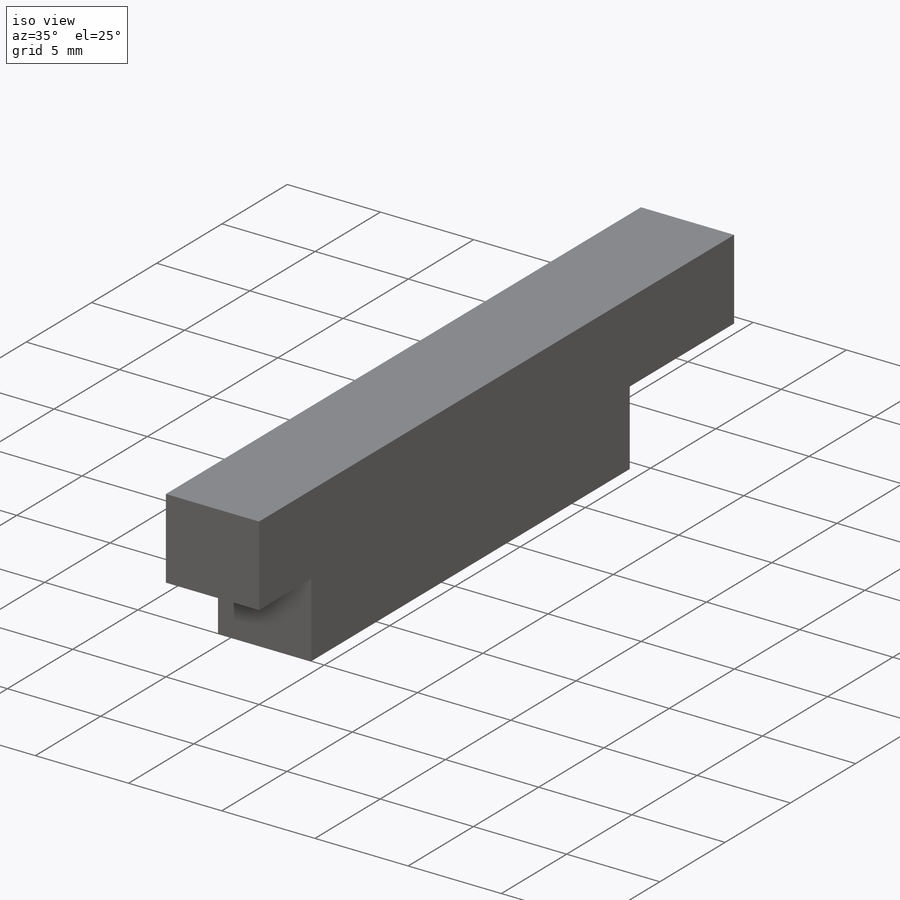
[diagram: iso view]
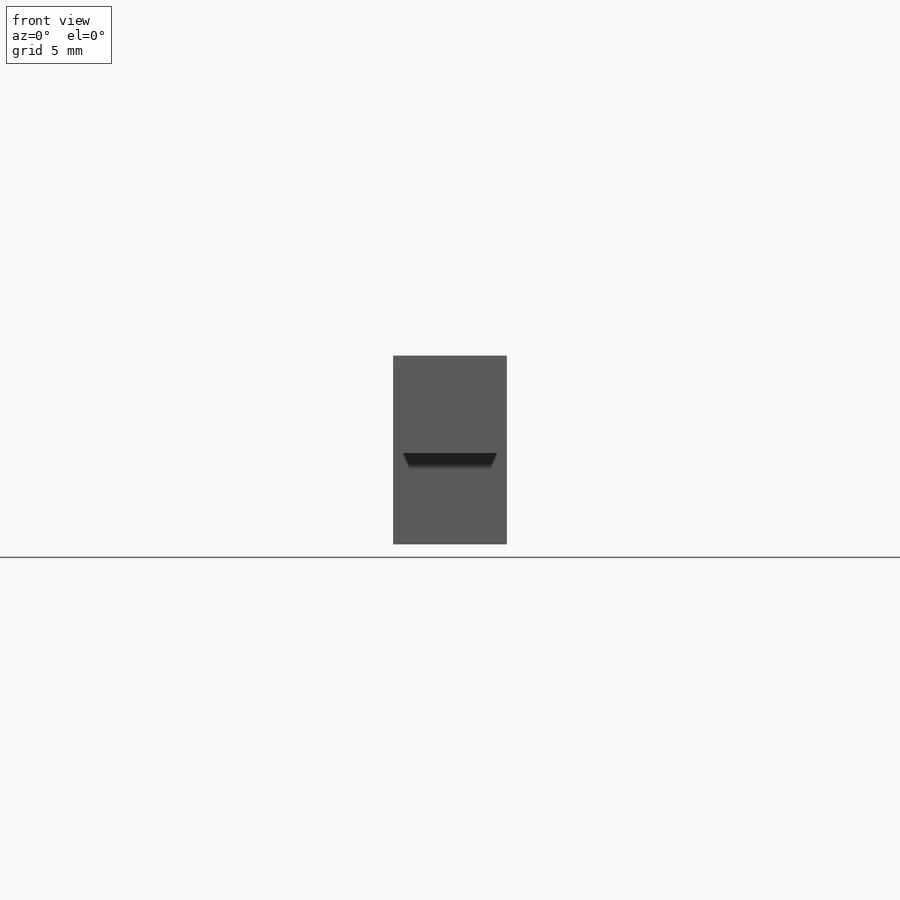
[diagram: front view]
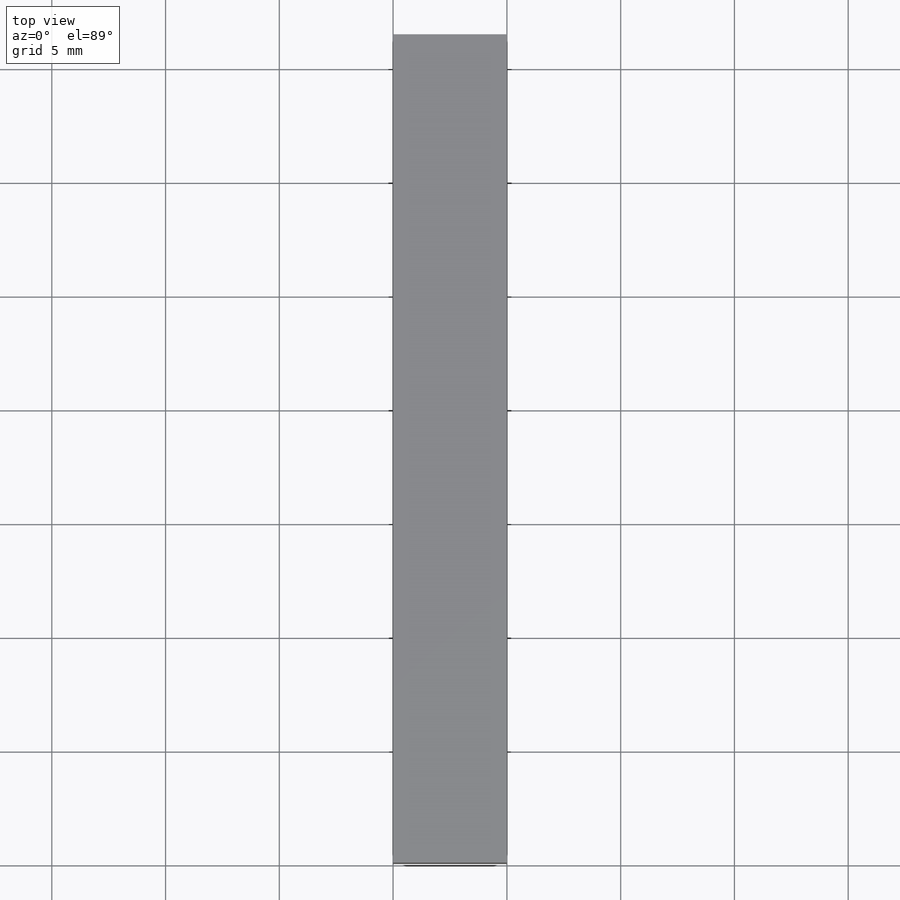
[diagram: top view]
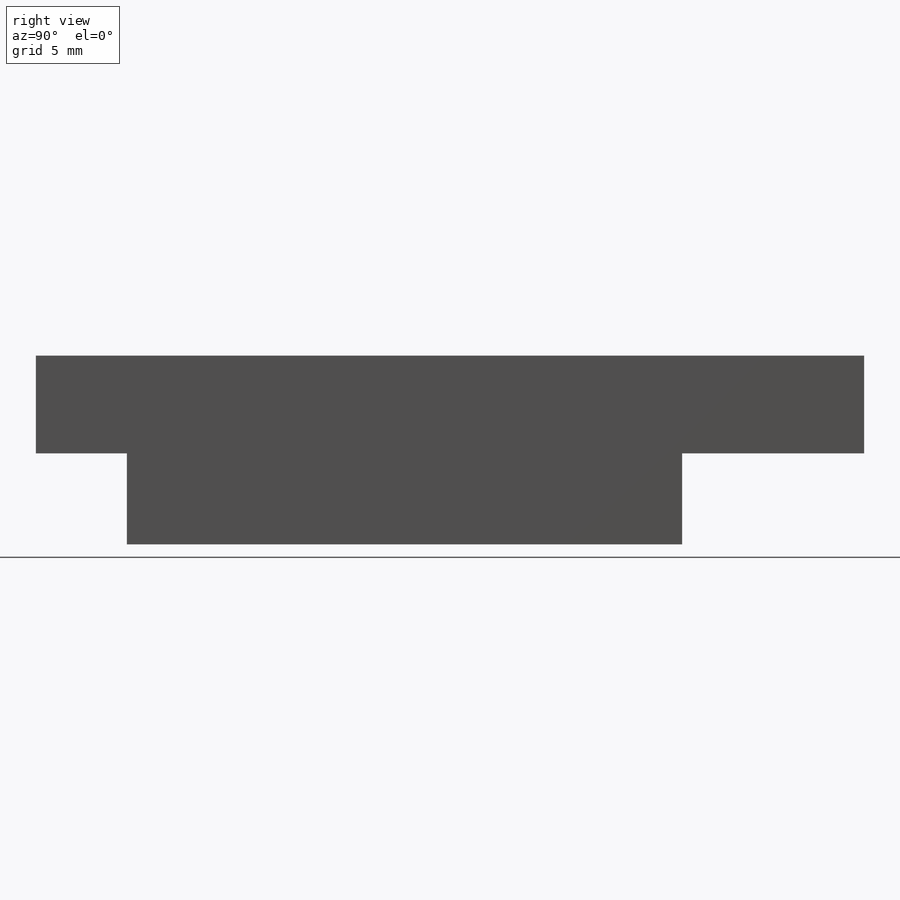
[diagram: right view]
SOLIDWORKS PART (.sldprt)
format: sldprt  version: not decoded by parser v0  size: 159,232 bytes
history: native  units: mm
features: sketch x3, material x1, extrude x1, hole x1 (+11 scaffold rows collapsed)
feature tree (17):
  scaffold x11  (default folders/planes/origin — collapsed)
  material  "Material <not specified>"
  sketch  "Sketch1"  dims[D1=4.0mm D2=8.0mm D3=8.3mm D4=36.4mm D5=4.0mm]
  extrude  "Boss-Extrude1"  Depth=5mm
  hole  "Tap Drill for M2x0.4 Tap1"  Diameter=1.6mm Depth=5mm
  sketch  "Sketch3"  dims[D1=13.0mm D2=9.0mm D3=2.5mm]
  sketch  "Sketch2"  dims[hole-wizard template sketch: 49 standard entries collapsed; hole parameters kept: c15.Drill Angle=180.0deg]
decode coverage: 5 of 5 modeling features carry decoded parameters
note: ~ marks probable driven/reference dimensions
note: suppression state not decoded; provenance and decode notes live in map.json
